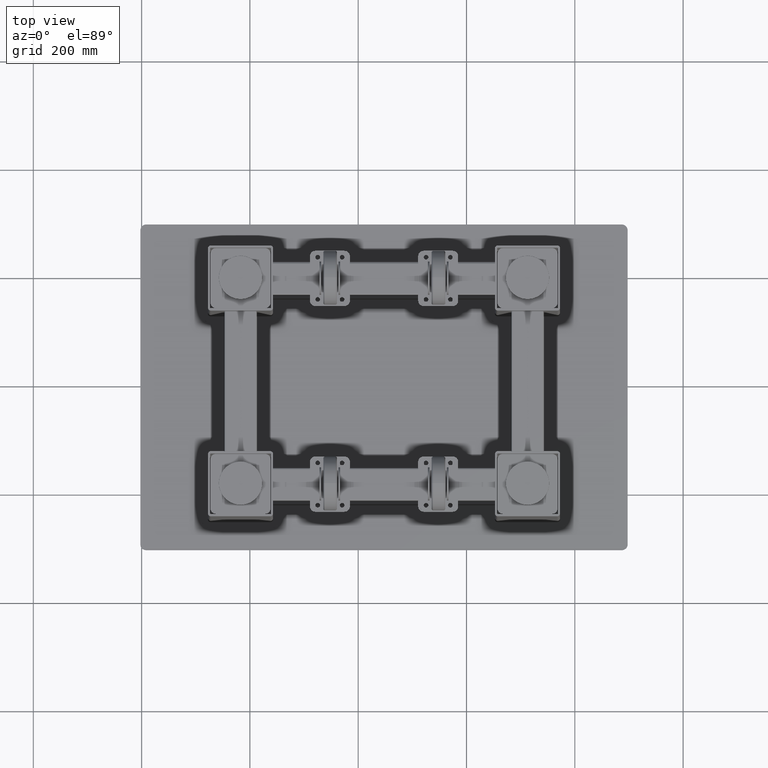
[diagram: clean part render]
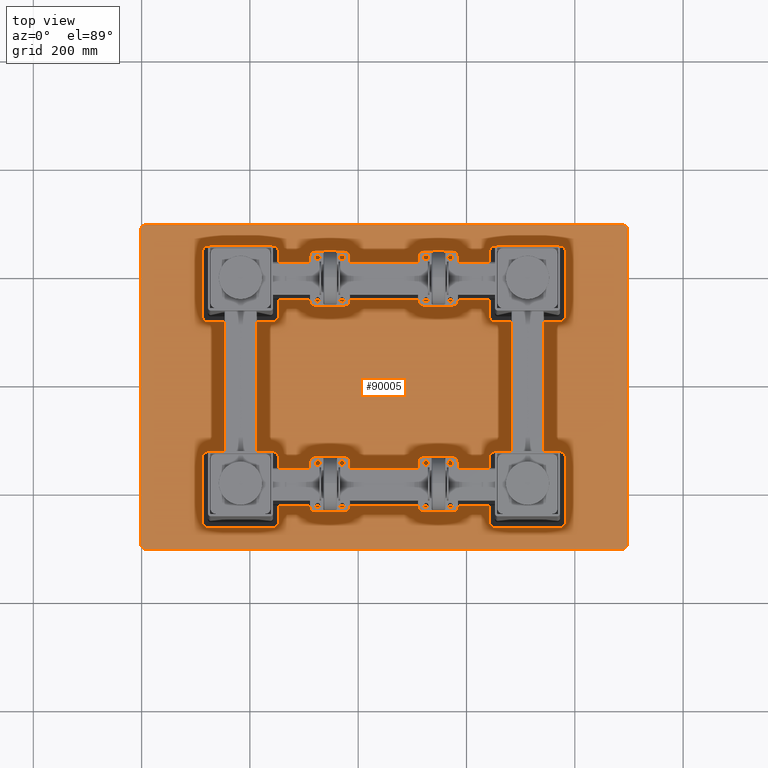
[diagram: same view with one face highlighted and labeled with its STEP entity id]
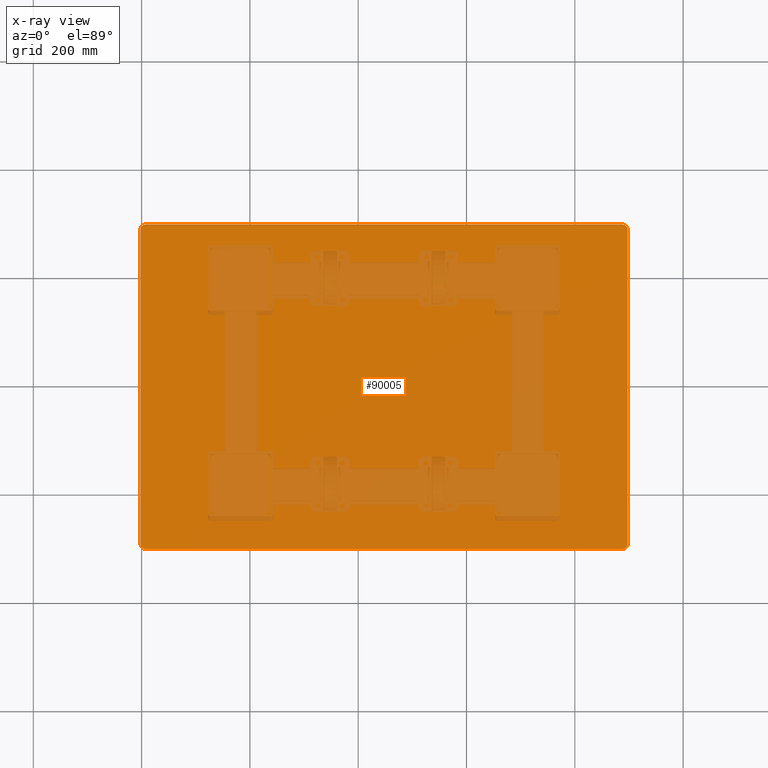
[diagram: x-ray of the same camera — body ghosted, the highlighted face saturated]
A machine part, top view. The second image highlights one B-rep face of the part: STEP entity #90005.
The next image is the same camera in x-ray: the body ghosted, the highlighted face saturated — about 29% of this face is hidden behind the body in this view.
In plain terms, the highlighted planar face has unit normal (0, 0, 1).
Its self-contained STEP definition (entity closure, byte-faithful):
#418 = DIRECTION ( 'NONE',  ( 0.000000000000000000, 1.224646799147353207E-16, 1.000000000000000000 ) ) ;
#4908 = EDGE_CURVE ( 'NONE', #89554, #106883, #15302, .T. ) ;
#7858 = DIRECTION ( 'NONE',  ( 0.000000000000000000, 1.000000000000000000, 0.000000000000000000 ) ) ;
#9496 = DIRECTION ( 'NONE',  ( 0.000000000000000000, 1.224646799147353207E-16, 1.000000000000000000 ) ) ;
#11502 = LINE ( 'NONE', #89946, #94534 ) ;
#15302 = LINE ( 'NONE', #36497, #70606 ) ;
#15615 = CIRCLE ( 'NONE', #23786, 11.00000000000001066 ) ;
#15931 = AXIS2_PLACEMENT_3D ( 'NONE', #105487, #38598, #7858 ) ;
#17689 = CARTESIAN_POINT ( 'NONE',  ( -1191.357977528090032, -102.0755805243444030, -361.4999999999999432 ) ) ;
#19676 = VERTEX_POINT ( 'NONE', #121879 ) ;
#20089 = CIRCLE ( 'NONE', #15931, 11.00000000000001066 ) ;
#21423 = EDGE_CURVE ( 'NONE', #22090, #89554, #20089, .T. ) ;
#22090 = VERTEX_POINT ( 'NONE', #68174 ) ;
#22386 = DIRECTION ( 'NONE',  ( -0.000000000000000000, 1.000000000000000000, -1.224646799147353207E-16 ) ) ;
#23247 = DIRECTION ( 'NONE',  ( 0.000000000000000000, 1.224646799147353207E-16, 1.000000000000000000 ) ) ;
#23786 = AXIS2_PLACEMENT_3D ( 'NONE', #88411, #418, #98000 ) ;
#27547 = ORIENTED_EDGE ( 'NONE', *, *, #101654, .T. ) ;
#27837 = ORIENTED_EDGE ( 'NONE', *, *, #21423, .T. ) ;
#28239 = DIRECTION ( 'NONE',  ( 0.000000000000000000, 1.224646799147353207E-16, 1.000000000000000000 ) ) ;
#29491 = CARTESIAN_POINT ( 'NONE',  ( -313.3579775280900321, 486.9244194756556112, -361.5000000000000568 ) ) ;
#30298 = CARTESIAN_POINT ( 'NONE',  ( -313.3579775280900321, 497.9244194756556112, -361.5000000000000568 ) ) ;
#32846 = CARTESIAN_POINT ( 'NONE',  ( -313.3579775280900321, -91.07558052434438878, -361.4999999999999432 ) ) ;
#34946 = CARTESIAN_POINT ( 'NONE',  ( -1202.357977528090260, 486.9244194756556112, -361.5000000000000568 ) ) ;
#36497 = CARTESIAN_POINT ( 'NONE',  ( -313.3579775280900321, -102.0755805243444030, -361.4999999999999432 ) ) ;
#37261 = CARTESIAN_POINT ( 'NONE',  ( -302.3579775280901458, 486.9244194756556112, -361.5000000000000568 ) ) ;
#38050 = EDGE_CURVE ( 'NONE', #19676, #110784, #109949, .T. ) ;
#38598 = DIRECTION ( 'NONE',  ( 0.000000000000000000, 1.224646799147353207E-16, 1.000000000000000000 ) ) ;
#40848 = CARTESIAN_POINT ( 'NONE',  ( -313.3579775280900321, 486.9244194756556112, -361.5000000000000568 ) ) ;
#43649 = VECTOR ( 'NONE', #108087, 1000.000000000000000 ) ;
#44141 = CARTESIAN_POINT ( 'NONE',  ( -1191.357977528090260, 497.9244194756556112, -361.5000000000000568 ) ) ;
#44364 = DIRECTION ( 'NONE',  ( 0.000000000000000000, 1.000000000000000000, 0.000000000000000000 ) ) ;
#51776 = DIRECTION ( 'NONE',  ( 0.000000000000000000, -1.000000000000000000, 1.224646799147353207E-16 ) ) ;
#52944 = VECTOR ( 'NONE', #112640, 1000.000000000000000 ) ;
#55184 = EDGE_LOOP ( 'NONE', ( #113657, #65658, #100142, #27837, #113228, #27547, #120828, #111463 ) ) ;
#57945 = AXIS2_PLACEMENT_3D ( 'NONE', #29491, #28239, #51776 ) ;
#58188 = CIRCLE ( 'NONE', #68219, 10.99999999999995381 ) ;
#62672 = EDGE_CURVE ( 'NONE', #68588, #19676, #58188, .T. ) ;
#63543 = CARTESIAN_POINT ( 'NONE',  ( -1202.357977528090260, 486.9244194756556112, -361.5000000000000568 ) ) ;
#65658 = ORIENTED_EDGE ( 'NONE', *, *, #120308, .T. ) ;
#66339 = CIRCLE ( 'NONE', #103013, 10.99999999999989875 ) ;
#68174 = CARTESIAN_POINT ( 'NONE',  ( -1202.357977528090260, -91.07558052434438878, -361.4999999999999432 ) ) ;
#68219 = AXIS2_PLACEMENT_3D ( 'NONE', #40848, #9496, #116051 ) ;
#68588 = VERTEX_POINT ( 'NONE', #37261 ) ;
#70606 = VECTOR ( 'NONE', #73378, 1000.000000000000000 ) ;
#73378 = DIRECTION ( 'NONE',  ( 1.000000000000000000, 0.000000000000000000, 0.000000000000000000 ) ) ;
#80661 = VERTEX_POINT ( 'NONE', #34946 ) ;
#81978 = EDGE_CURVE ( 'NONE', #93020, #68588, #11502, .T. ) ;
#82606 = LINE ( 'NONE', #63543, #52944 ) ;
#83629 = CARTESIAN_POINT ( 'NONE',  ( -302.3579775280901458, -91.07558052434438878, -361.4999999999999432 ) ) ;
#85515 = FACE_OUTER_BOUND ( 'NONE', #55184, .T. ) ;
#88411 = CARTESIAN_POINT ( 'NONE',  ( -1191.357977528090260, 486.9244194756556112, -361.5000000000000568 ) ) ;
#89554 = VERTEX_POINT ( 'NONE', #17689 ) ;
#89946 = CARTESIAN_POINT ( 'NONE',  ( -302.3579775280901458, 486.9244194756556112, -361.5000000000000568 ) ) ;
#90005 = ADVANCED_FACE ( 'NONE', ( #85515 ), #116799, .T. ) ;
#93020 = VERTEX_POINT ( 'NONE', #83629 ) ;
#94534 = VECTOR ( 'NONE', #22386, 1000.000000000000000 ) ;
#95799 = CARTESIAN_POINT ( 'NONE',  ( -313.3579775280900321, -102.0755805243442893, -361.4999999999999432 ) ) ;
#98000 = DIRECTION ( 'NONE',  ( 0.000000000000000000, 1.000000000000000000, 0.000000000000000000 ) ) ;
#100142 = ORIENTED_EDGE ( 'NONE', *, *, #116430, .T. ) ;
#101654 = EDGE_CURVE ( 'NONE', #106883, #93020, #66339, .T. ) ;
#103013 = AXIS2_PLACEMENT_3D ( 'NONE', #32846, #23247, #44364 ) ;
#105487 = CARTESIAN_POINT ( 'NONE',  ( -1191.357977528090032, -91.07558052434438878, -361.4999999999999432 ) ) ;
#106883 = VERTEX_POINT ( 'NONE', #95799 ) ;
#108087 = DIRECTION ( 'NONE',  ( -1.000000000000000000, -0.000000000000000000, -0.000000000000000000 ) ) ;
#109949 = LINE ( 'NONE', #30298, #43649 ) ;
#110784 = VERTEX_POINT ( 'NONE', #44141 ) ;
#111463 = ORIENTED_EDGE ( 'NONE', *, *, #62672, .T. ) ;
#112640 = DIRECTION ( 'NONE',  ( 0.000000000000000000, -1.000000000000000000, 1.224646799147353207E-16 ) ) ;
#113228 = ORIENTED_EDGE ( 'NONE', *, *, #4908, .T. ) ;
#113657 = ORIENTED_EDGE ( 'NONE', *, *, #38050, .T. ) ;
#116051 = DIRECTION ( 'NONE',  ( 0.000000000000000000, 1.000000000000000000, 0.000000000000000000 ) ) ;
#116430 = EDGE_CURVE ( 'NONE', #80661, #22090, #82606, .T. ) ;
#116799 = PLANE ( 'NONE',  #57945 ) ;
#120308 = EDGE_CURVE ( 'NONE', #110784, #80661, #15615, .T. ) ;
#120828 = ORIENTED_EDGE ( 'NONE', *, *, #81978, .T. ) ;
#121879 = CARTESIAN_POINT ( 'NONE',  ( -313.3579775280900321, 497.9244194756556112, -361.5000000000000568 ) ) ;